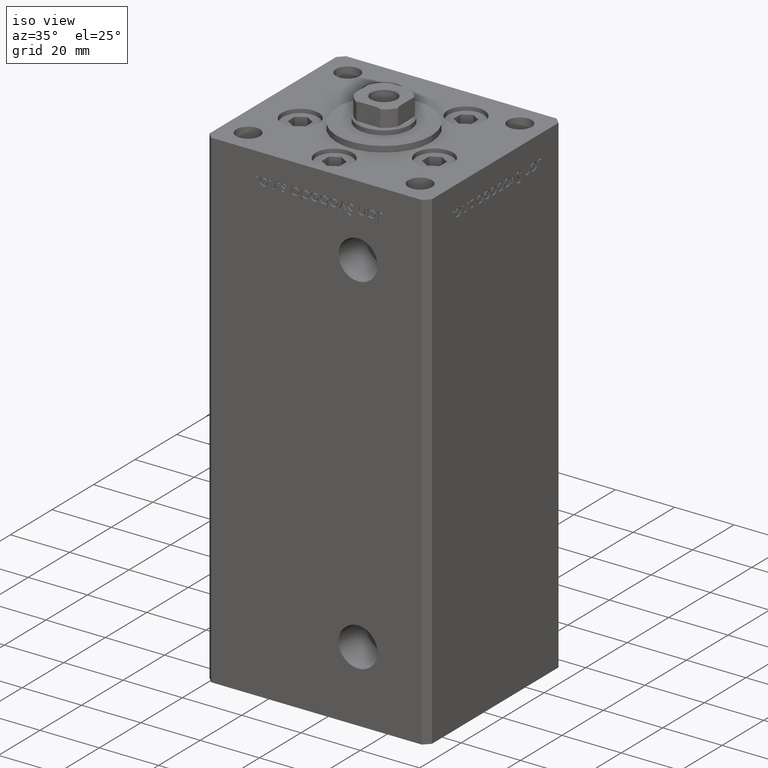
[diagram: clean part render]
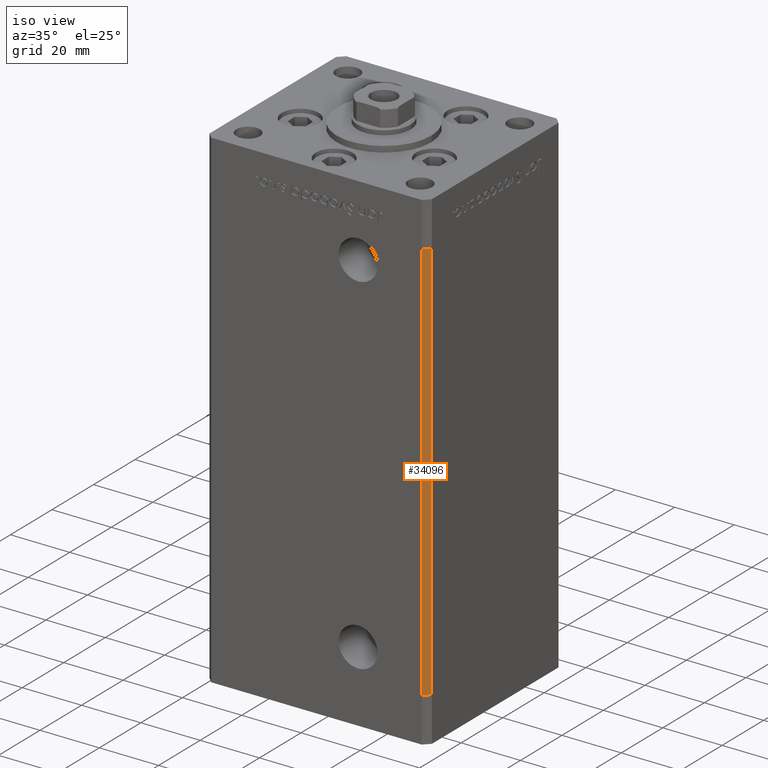
[diagram: same view with one face highlighted and labeled with its STEP entity id]
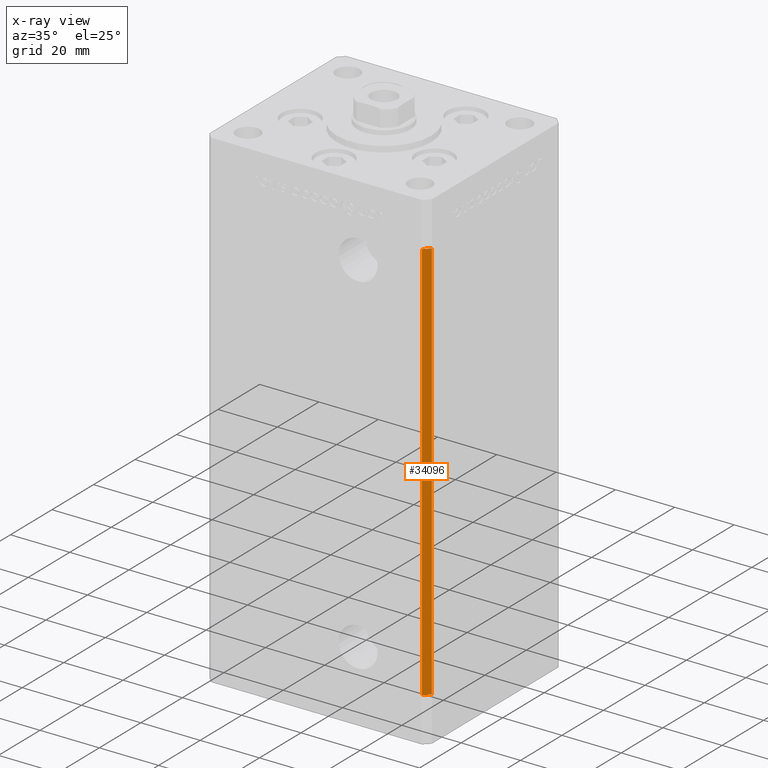
[diagram: x-ray of the same camera — body ghosted, the highlighted face saturated]
A machine part, iso view. The second image highlights one B-rep face of the part: STEP entity #34096.
The next image is the same camera in x-ray: the body ghosted, the highlighted face saturated — about 0% of this face is hidden behind the body in this view.
In plain terms, the highlighted planar face has unit normal (0.7071, -0.7071, 0).
Its self-contained STEP definition (entity closure, byte-faithful):
#4953 = VERTEX_POINT ( 'NONE', #5249 ) ;
#5131 = DIRECTION ( 'NONE',  ( -0.7071067811865474617, -0.7071067811865474617, 0.000000000000000000 ) ) ;
#5249 = CARTESIAN_POINT ( 'NONE',  ( 37.49999999999999289, -30.50000000000000000, 136.0000000000000000 ) ) ;
#5468 = VECTOR ( 'NONE', #34050, 1000.000000000000114 ) ;
#6047 = VECTOR ( 'NONE', #51718, 1000.000000000000000 ) ;
#6443 = VECTOR ( 'NONE', #41885, 1000.000000000000000 ) ;
#7800 = EDGE_CURVE ( 'NONE', #22342, #8414, #42292, .T. ) ;
#8414 = VERTEX_POINT ( 'NONE', #32720 ) ;
#8804 = DIRECTION ( 'NONE',  ( 0.7071067811865475727, -0.7071067811865475727, 0.000000000000000000 ) ) ;
#10828 = ORIENTED_EDGE ( 'NONE', *, *, #49688, .F. ) ;
#13615 = EDGE_LOOP ( 'NONE', ( #49960, #10828, #16032, #50306 ) ) ;
#15010 = EDGE_CURVE ( 'NONE', #41580, #8414, #37683, .T. ) ;
#16032 = ORIENTED_EDGE ( 'NONE', *, *, #22993, .T. ) ;
#17681 = CARTESIAN_POINT ( 'NONE',  ( 35.49999999999999289, -32.50000000000000000, 136.0000000000000000 ) ) ;
#20698 = DIRECTION ( 'NONE',  ( 0.7071067811865474617, 0.7071067811865474617, 0.000000000000000000 ) ) ;
#21928 = CARTESIAN_POINT ( 'NONE',  ( 37.49999999999999289, -30.50000000000000000, 136.0000000000000000 ) ) ;
#22342 = VERTEX_POINT ( 'NONE', #37688 ) ;
#22993 = EDGE_CURVE ( 'NONE', #4953, #41580, #46170, .T. ) ;
#25031 = CARTESIAN_POINT ( 'NONE',  ( 35.49999999999999289, -32.50000000000000000, 136.0000000000000000 ) ) ;
#31497 = VECTOR ( 'NONE', #5131, 1000.000000000000114 ) ;
#32720 = CARTESIAN_POINT ( 'NONE',  ( 35.49999999999999289, -32.50000000000000000, 0.000000000000000000 ) ) ;
#34050 = DIRECTION ( 'NONE',  ( -0.7071067811865474617, -0.7071067811865474617, 0.000000000000000000 ) ) ;
#34096 = ADVANCED_FACE ( 'NONE', ( #40479 ), #44938, .T. ) ;
#35624 = LINE ( 'NONE', #47757, #6047 ) ;
#37683 = LINE ( 'NONE', #25031, #6443 ) ;
#37688 = CARTESIAN_POINT ( 'NONE',  ( 37.49999999999999289, -30.50000000000000000, 0.000000000000000000 ) ) ;
#40479 = FACE_OUTER_BOUND ( 'NONE', #13615, .T. ) ;
#41580 = VERTEX_POINT ( 'NONE', #17681 ) ;
#41885 = DIRECTION ( 'NONE',  ( -0.000000000000000000, -0.000000000000000000, -1.000000000000000000 ) ) ;
#42292 = LINE ( 'NONE', #49715, #31497 ) ;
#44938 = PLANE ( 'NONE',  #52089 ) ;
#46170 = LINE ( 'NONE', #21928, #5468 ) ;
#47757 = CARTESIAN_POINT ( 'NONE',  ( 37.49999999999999289, -30.50000000000000000, 136.0000000000000000 ) ) ;
#49688 = EDGE_CURVE ( 'NONE', #4953, #22342, #35624, .T. ) ;
#49715 = CARTESIAN_POINT ( 'NONE',  ( 37.49999999999999289, -30.50000000000000000, 0.000000000000000000 ) ) ;
#49960 = ORIENTED_EDGE ( 'NONE', *, *, #7800, .F. ) ;
#50306 = ORIENTED_EDGE ( 'NONE', *, *, #15010, .T. ) ;
#51718 = DIRECTION ( 'NONE',  ( -0.000000000000000000, -0.000000000000000000, -1.000000000000000000 ) ) ;
#52089 = AXIS2_PLACEMENT_3D ( 'NONE', #52107, #8804, #20698 ) ;
#52107 = CARTESIAN_POINT ( 'NONE',  ( 37.49999999999999289, -30.50000000000000000, 136.0000000000000000 ) ) ;